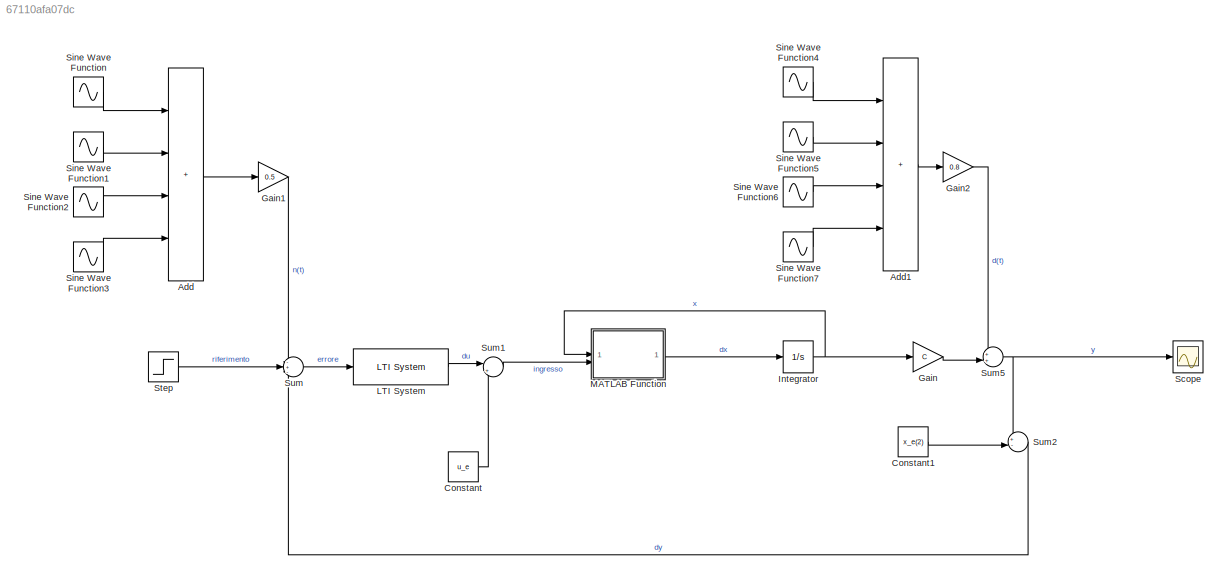
MODEL slx_67110afa07dc
KIND model
CONFIG AbsTol = auto
CONFIG EnableMultiTasking = off
CONFIG FixedStep = auto
CONFIG MaxStep = auto
CONFIG MinStep = auto
CONFIG RelTol = 1e-3
CONFIG SampleTimeConstraint = Unconstrained
CONFIG SolverName = VariableStepAuto
CONFIG StartTime = 0.0
CONFIG StopTime = 10
BLOCK [Sum] Add
  IconShape = rectangular
  Inputs = ++++
BLOCK [Sum] Add1
  IconShape = rectangular
  Inputs = ++++
BLOCK [Constant] Constant
  Value = u_e
BLOCK [Constant] Constant1
  Value = x_e(2)
BLOCK [Gain] Gain
  Gain = C
  Multiplication = Matrix(K*u)
BLOCK [Gain] Gain1
  Gain = 0.5
BLOCK [Gain] Gain2
  Gain = 0.8
BLOCK [Integrator] Integrator
  InitialCondition = x_e
BLOCK [Reference] LTI System  REF=cstblocks/LTI System
  SourceBlock = cstblocks/LTI System
  SourceType = LTI Block
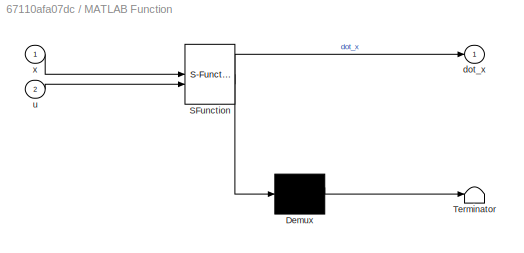
BLOCK [SubSystem] MATLAB Function
  ErrorFcn = Stateflow.Translate.translate
  PermitHierarchicalResolution = ExplicitOnly
  SFBlockType = MATLAB Function
  TreatAsAtomicUnit = on
BLOCK [Demux] MATLAB Function/ Demux 
  Outputs = 1
BLOCK [S-Function] MATLAB Function/ SFunction 
  EnableBusSupport = off
  FunctionName = sf_sfun
  PortCounts = [2 2]
  SFcnIsStateOwnerBlock = off
  SFunctionDeploymentMode = off
  Tag = Stateflow S-Function 2
BLOCK [Terminator] MATLAB Function/ Terminator 
BLOCK [Outport] MATLAB Function/dot_x
BLOCK [Inport] MATLAB Function/u
  Port = 2
BLOCK [Inport] MATLAB Function/x
BLOCK [Scope] Scope
  ActiveDisplayYMaximum = 41.713810557083114
  ActiveDisplayYMinimum = 27.380243271435212
  Floating = off
  GraphicalSettings = {"Style":{"BackgroundColor":[0.12941176470588237,0.12941176470588237,0.12941176470588237],"AxesColor":[0.07058823529411765,0.07058823529411765,0.07058823529411765],"LabelsColor":[0.8509803921568627,0.8509803921568627,0.8509803921568627],"PreserveColors":false,"Visible":[true],"LineStyle":["-"],"LineWidth":[1.5],"BarWidth":[0.9],"LineColor":["auto"],"LineFaceAlpha":[1],"LineEdgeAlpha":[1],"Marker":...<+2011ch>
  MultipleDisplayCache = [{"MaxYLimMag":41.713810557083114,"MaxYLimReal":41.713810557083114,"MinYLimMag":27.380243271435212,"MinYLimReal":27.380243271435212,"PlotAsMagnitudePhase":false,"ShowGrid":true,"ShowLegend":false,"Title":"%<SignalLabel>","YLabel":""}]
  NumInputPorts = 1
  ScopeFrameLocation = window
  WasSavedAsWebScope = on
  WindowPosition = [0.000000,36.000000,1440.000000,889.000000,]
BLOCK [Sin] Sine Wave Function
  Frequency = 10^5
  SampleTime = 0
BLOCK [Sin] Sine Wave Function1
  Frequency = 2*10^5
  SampleTime = 0
BLOCK [Sin] Sine Wave Function2
  Frequency = 3*10^5
  SampleTime = 0
BLOCK [Sin] Sine Wave Function3
  Frequency = 4*10^5
  SampleTime = 0
BLOCK [Sin] Sine Wave Function4
  Frequency = 0.02
  SampleTime = 0
BLOCK [Sin] Sine Wave Function5
  Frequency = 0.04
  SampleTime = 0
BLOCK [Sin] Sine Wave Function6
  Frequency = 0.06
  SampleTime = 0
BLOCK [Sin] Sine Wave Function7
  Frequency = 0.08
  SampleTime = 0
BLOCK [Step] Step
  After = 10
  SampleTime = 0
  Time = 0.1
BLOCK [Sum] Sum
  Inputs = -+-
BLOCK [Sum] Sum1
  Inputs = |++
BLOCK [Sum] Sum2
  Inputs = +-|
BLOCK [Sum] Sum5
  Inputs = ++|
LINE Add1:1 -> Gain2:1
LINE Add:1 -> Gain1:1
LINE Constant1:1 -> Sum2:2
LINE Constant:1 -> Sum1:2
LINE Gain1:1 -> Sum:1
LINE Gain2:1 -> Sum5:1
LINE Gain:1 -> Sum5:2
NET Integrator:1 -> Gain:1, MATLAB Function:1
LINE LTI System:1 -> Sum1:1
LINE MATLAB Function:1 -> Integrator:1
LINE Sine Wave Function1:1 -> Add:2
LINE Sine Wave Function2:1 -> Add:3
LINE Sine Wave Function3:1 -> Add:4
LINE Sine Wave Function4:1 -> Add1:1
LINE Sine Wave Function5:1 -> Add1:2
LINE Sine Wave Function6:1 -> Add1:3
LINE Sine Wave Function7:1 -> Add1:4
LINE Sine Wave Function:1 -> Add:1
LINE Step:1 -> Sum:2
LINE Sum1:1 -> MATLAB Function:2
LINE Sum2:1 -> Sum:3
NET Sum5:1 -> Scope:1, Sum2:1
LINE Sum:1 -> LTI System:1
note: NET lines group one-source signal fan-out (src -> all destinations, sorted); 1:1 wires keep LINE
CHART MATLAB Function states=1 transitions=1
  STATE_LABEL 'eML_blk_kernel()'
  STATE_LABEL "SCRIPT:\nfunction dot_x = fcn(x,u)\n\n% parametri del sistema\nh_R   = 50;          %  coefficiente di convezione tra riscaldatore e aria [W/(m2 C°)]\nA_R   = 0.09;        %  area di scambio termico tra riscaldatore e aria [m2]\nc_R   = 823.6;       %  calore specifico del riscaldatore [J/(kg C°)]\nc_A   = 1010;        %  calore specifico dell'aria [J/(kg C°)]\nm_R   = 1.542;       %  massa del riscaldato...<+498ch>"
CHART  states=0 transitions=0
